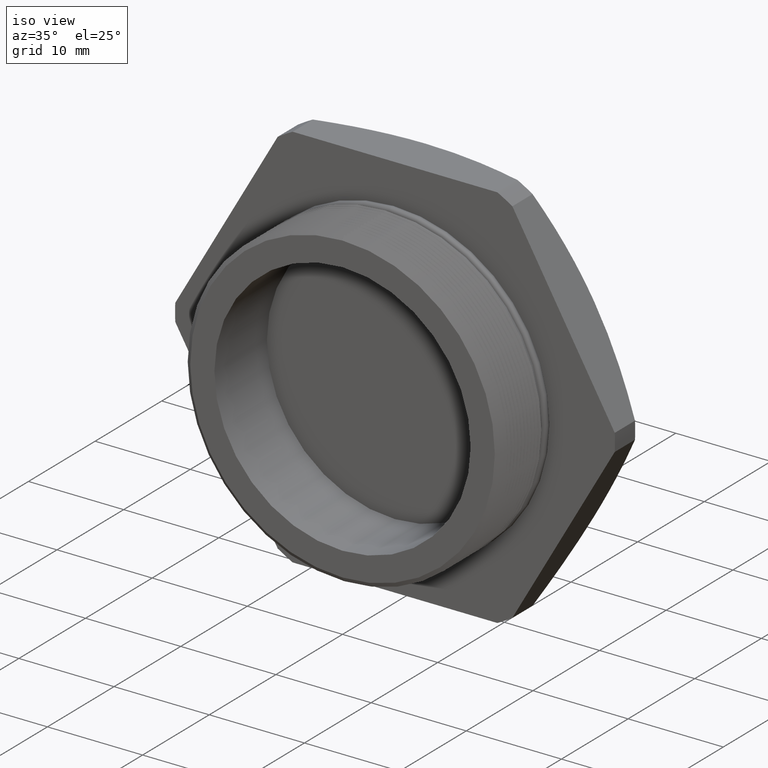
[diagram: clean part render]
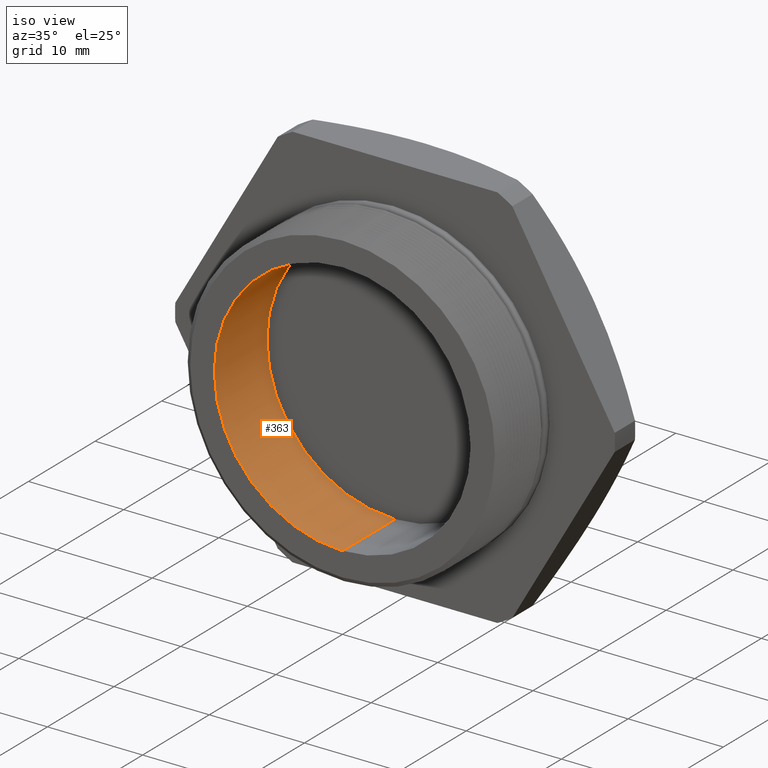
[diagram: same view with one face highlighted and labeled with its STEP entity id]
A machine part, iso view. The second image highlights one B-rep face of the part: STEP entity #363.
In plain terms, the highlighted cylindrical surface (partial cylindrical patch) has radius 13.462 mm, axis along (0, -1, 0).
Its self-contained STEP definition (entity closure, byte-faithful):
#121 = ORIENTED_EDGE ( 'NONE', *, *, #145, .T. ) ;
#145 = EDGE_CURVE ( 'NONE', #323, #369, #977, .T. ) ;
#159 = EDGE_CURVE ( 'NONE', #376, #366, #1018, .T. ) ;
#323 = VERTEX_POINT ( 'NONE', #1255 ) ;
#363 = ADVANCED_FACE ( 'NONE', ( #1359 ), #1358, .F. ) ;
#365 = ORIENTED_EDGE ( 'NONE', *, *, #159, .F. ) ;
#366 = VERTEX_POINT ( 'NONE', #1353 ) ;
#367 = ORIENTED_EDGE ( 'NONE', *, *, #378, .T. ) ;
#369 = VERTEX_POINT ( 'NONE', #1351 ) ;
#376 = VERTEX_POINT ( 'NONE', #1406 ) ;
#377 = EDGE_CURVE ( 'NONE', #323, #376, #1405, .T. ) ;
#378 = EDGE_CURVE ( 'NONE', #369, #366, #1400, .T. ) ;
#391 = ORIENTED_EDGE ( 'NONE', *, *, #377, .F. ) ;
#402 = EDGE_LOOP ( 'NONE', ( #391, #121, #367, #365 ) ) ;
#974 = DIRECTION ( 'NONE',  ( 0.0000000000000000000, -1.000000000000000000, 0.0000000000000000000 ) ) ;
#975 = VECTOR ( 'NONE', #974, 39.37007874015748100 ) ;
#976 = CARTESIAN_POINT ( 'NONE',  ( 6.490628035480971200E-017, 0.0000000000000000000, 0.5299999999999999200 ) ) ;
#977 = LINE ( 'NONE', #976, #975 ) ;
#1015 = DIRECTION ( 'NONE',  ( 0.0000000000000000000, -1.000000000000000000, 0.0000000000000000000 ) ) ;
#1016 = VECTOR ( 'NONE', #1015, 39.37007874015748100 ) ;
#1017 = CARTESIAN_POINT ( 'NONE',  ( 0.0000000000000000000, 0.0000000000000000000, -0.5299999999999999200 ) ) ;
#1018 = LINE ( 'NONE', #1017, #1016 ) ;
#1255 = CARTESIAN_POINT ( 'NONE',  ( 6.490628035480971200E-017, 0.3100000000000000500, 0.5299999999999999200 ) ) ;
#1351 = CARTESIAN_POINT ( 'NONE',  ( 6.490628035480971200E-017, -1.714448895351328100E-017, 0.5299999999999999200 ) ) ;
#1353 = CARTESIAN_POINT ( 'NONE',  ( 0.0000000000000000000, -1.714448895351328100E-017, -0.5299999999999999200 ) ) ;
#1354 = DIRECTION ( 'NONE',  ( 0.0000000000000000000, 0.0000000000000000000, -1.000000000000000000 ) ) ;
#1355 = DIRECTION ( 'NONE',  ( 0.0000000000000000000, -1.000000000000000000, 0.0000000000000000000 ) ) ;
#1356 = CARTESIAN_POINT ( 'NONE',  ( 0.0000000000000000000, 0.0000000000000000000, 0.0000000000000000000 ) ) ;
#1357 = AXIS2_PLACEMENT_3D ( 'NONE', #1356, #1355, #1354 ) ;
#1358 = CYLINDRICAL_SURFACE ( 'NONE', #1357, 0.5299999999999999200 ) ;
#1359 = FACE_OUTER_BOUND ( 'NONE', #402, .T. ) ;
#1396 = DIRECTION ( 'NONE',  ( 0.0000000000000000000, 0.0000000000000000000, -1.000000000000000000 ) ) ;
#1397 = DIRECTION ( 'NONE',  ( 0.0000000000000000000, -1.000000000000000000, 0.0000000000000000000 ) ) ;
#1398 = CARTESIAN_POINT ( 'NONE',  ( 0.0000000000000000000, -1.714448895351328100E-017, 0.0000000000000000000 ) ) ;
#1399 = AXIS2_PLACEMENT_3D ( 'NONE', #1398, #1397, #1396 ) ;
#1400 = CIRCLE ( 'NONE', #1399, 0.5299999999999999200 ) ;
#1401 = DIRECTION ( 'NONE',  ( 0.0000000000000000000, 0.0000000000000000000, -1.000000000000000000 ) ) ;
#1402 = DIRECTION ( 'NONE',  ( 0.0000000000000000000, -1.000000000000000000, 0.0000000000000000000 ) ) ;
#1403 = CARTESIAN_POINT ( 'NONE',  ( 0.0000000000000000000, 0.3100000000000000500, 0.0000000000000000000 ) ) ;
#1404 = AXIS2_PLACEMENT_3D ( 'NONE', #1403, #1402, #1401 ) ;
#1405 = CIRCLE ( 'NONE', #1404, 0.5299999999999999200 ) ;
#1406 = CARTESIAN_POINT ( 'NONE',  ( 0.0000000000000000000, 0.3100000000000000500, -0.5299999999999999200 ) ) ;